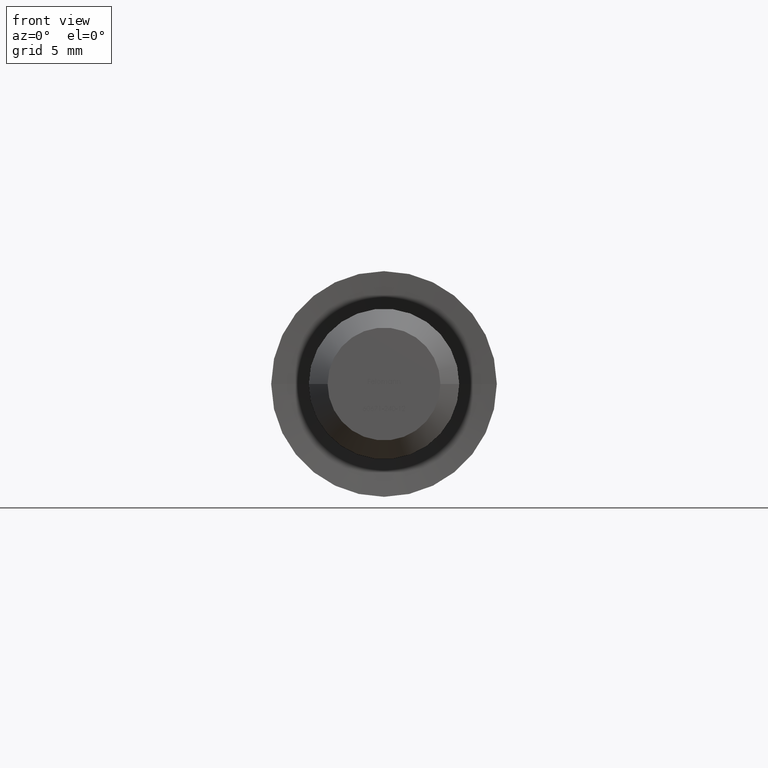
[diagram: clean part render]
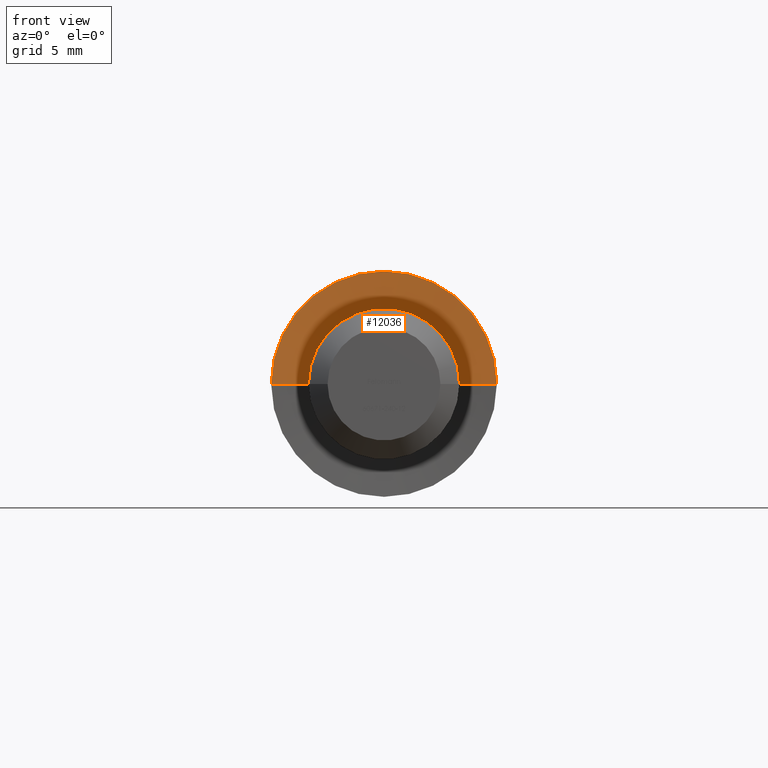
[diagram: same view with one face highlighted and labeled with its STEP entity id]
A machine part, front view. The second image highlights one B-rep face of the part: STEP entity #12036.
In plain terms, the highlighted conical surface has half-angle 85 deg.
Its self-contained STEP definition (entity closure, byte-faithful):
#181 = VECTOR ( 'NONE', #5936, 1000.000000000000000 ) ;
#765 = EDGE_CURVE ( 'NONE', #9480, #872, #9197, .T. ) ;
#787 = CARTESIAN_POINT ( 'NONE',  ( 7.520498261419917200E-016, 0.1734522991615004000, 0.0000000000000000000 ) ) ;
#825 = LINE ( 'NONE', #2870, #11242 ) ;
#872 = VERTEX_POINT ( 'NONE', #13092 ) ;
#880 = CARTESIAN_POINT ( 'NONE',  ( 4.017431148549521300, 0.1734522991615002300, 0.0000000000000000000 ) ) ;
#1013 = EDGE_CURVE ( 'NONE', #1127, #9371, #825, .T. ) ;
#1127 = VERTEX_POINT ( 'NONE', #880 ) ;
#1163 = ORIENTED_EDGE ( 'NONE', *, *, #765, .F. ) ;
#1215 = AXIS2_PLACEMENT_3D ( 'NONE', #2197, #6229, #9261 ) ;
#1712 = DIRECTION ( 'NONE',  ( 1.000000000000000000, -4.722803532139346500E-017, 0.0000000000000000000 ) ) ;
#1919 = CARTESIAN_POINT ( 'NONE',  ( -4.017431148549524000, 0.1734522991615005900, 4.919934196866051000E-016 ) ) ;
#2197 = CARTESIAN_POINT ( 'NONE',  ( 7.434529182757744400E-016, 0.0000000000000000000, 0.0000000000000000000 ) ) ;
#2454 = EDGE_LOOP ( 'NONE', ( #1163, #8152, #6686, #5793 ) ) ;
#2870 = CARTESIAN_POINT ( 'NONE',  ( 4.017431148549525800, 0.1734522991615002300, 0.0000000000000000000 ) ) ;
#3594 = EDGE_CURVE ( 'NONE', #9371, #872, #12941, .T. ) ;
#4100 = EDGE_CURVE ( 'NONE', #1127, #9480, #8203, .T. ) ;
#4714 = CARTESIAN_POINT ( 'NONE',  ( 6.000000000000004400, -2.981555974335137200E-016, 0.0000000000000000000 ) ) ;
#4906 = DIRECTION ( 'NONE',  ( -4.956352788505162800E-017, -1.000000000000000000, -0.0000000000000000000 ) ) ;
#5793 = ORIENTED_EDGE ( 'NONE', *, *, #3594, .T. ) ;
#5936 = DIRECTION ( 'NONE',  ( -0.9961946980917467700, -0.08715574274764413500, 1.219986648345621700E-016 ) ) ;
#6229 = DIRECTION ( 'NONE',  ( -4.956352788505162800E-017, -1.000000000000000000, -0.0000000000000000000 ) ) ;
#6543 = CONICAL_SURFACE ( 'NONE', #12040, 4.017431148549524900, 1.483529864195194200 ) ;
#6579 = CARTESIAN_POINT ( 'NONE',  ( 7.520498261419917200E-016, 0.1734522991615004000, 0.0000000000000000000 ) ) ;
#6686 = ORIENTED_EDGE ( 'NONE', *, *, #1013, .T. ) ;
#7133 = AXIS2_PLACEMENT_3D ( 'NONE', #787, #4906, #7793 ) ;
#7588 = DIRECTION ( 'NONE',  ( -4.956352788505162800E-017, -1.000000000000000000, -0.0000000000000000000 ) ) ;
#7793 = DIRECTION ( 'NONE',  ( 1.000000000000000000, -4.722803532139346500E-017, 0.0000000000000000000 ) ) ;
#8152 = ORIENTED_EDGE ( 'NONE', *, *, #4100, .F. ) ;
#8203 = CIRCLE ( 'NONE', #7133, 4.017431148549524900 ) ;
#8962 = DIRECTION ( 'NONE',  ( 0.9961946980917467700, -0.08715574274764424600, 0.0000000000000000000 ) ) ;
#9197 = LINE ( 'NONE', #1919, #181 ) ;
#9261 = DIRECTION ( 'NONE',  ( 1.000000000000000000, -4.956352788505162200E-017, 0.0000000000000000000 ) ) ;
#9371 = VERTEX_POINT ( 'NONE', #4714 ) ;
#9480 = VERTEX_POINT ( 'NONE', #9947 ) ;
#9947 = CARTESIAN_POINT ( 'NONE',  ( -4.017431148549520400, 0.1734522991615005900, 4.919934196866046000E-016 ) ) ;
#11242 = VECTOR ( 'NONE', #8962, 1000.000000000000000 ) ;
#12036 = ADVANCED_FACE ( 'NONE', ( #12671 ), #6543, .F. ) ;
#12040 = AXIS2_PLACEMENT_3D ( 'NONE', #6579, #7588, #1712 ) ;
#12671 = FACE_OUTER_BOUND ( 'NONE', #2454, .T. ) ;
#12941 = CIRCLE ( 'NONE', #1215, 6.000000000000002700 ) ;
#13092 = CARTESIAN_POINT ( 'NONE',  ( -6.000000000000002700, 2.981555974335137200E-016, 7.347880794884122700E-016 ) ) ;